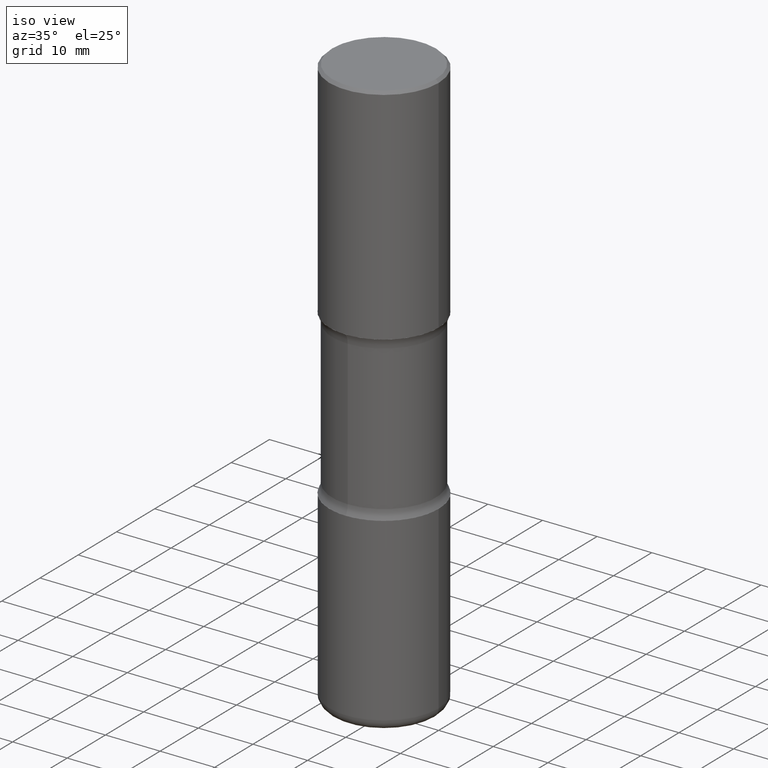
[diagram: clean part render]
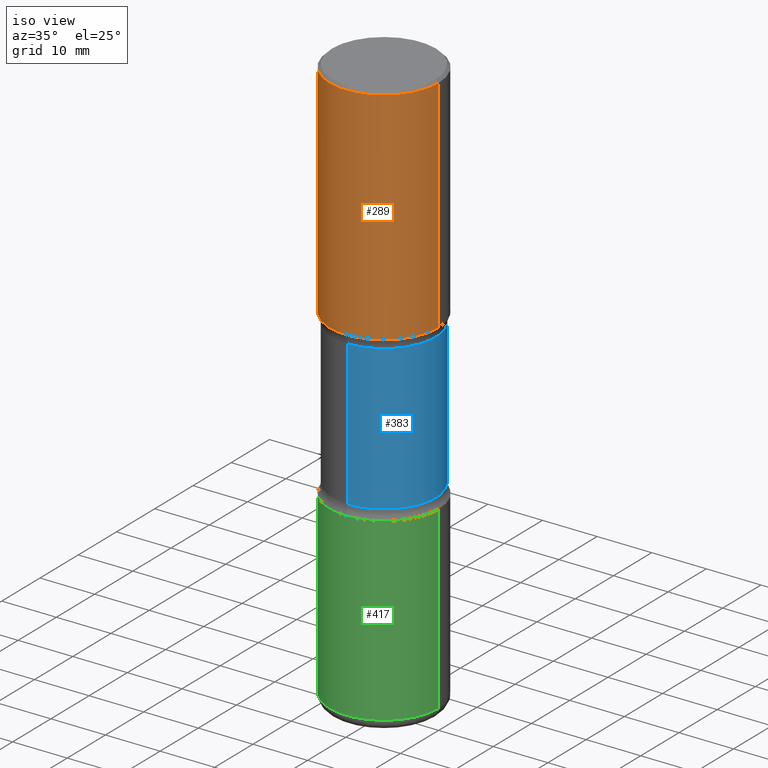
[diagram: same view with three faces highlighted in distinct colors, each labeled with its STEP entity id]
A machine part, iso view with three faces highlighted in distinct colors.
Their STEP definitions:

[orange] entity #289 — the highlighted cylindrical surface (partial cylindrical patch) has radius 10 mm, axis along (-0, 0, 1).
#8 = FACE_OUTER_BOUND ( 'NONE', #123, .T. ) ;
#12 = EDGE_CURVE ( 'NONE', #316, #271, #16, .T. ) ;
#16 = LINE ( 'NONE', #308, #420 ) ;
#28 = CARTESIAN_POINT ( 'NONE',  ( 0.3937000000000006605, -8.384792435231810596E-15, -1.614100000000000090 ) ) ;
#34 = ORIENTED_EDGE ( 'NONE', *, *, #173, .T. ) ;
#39 = EDGE_CURVE ( 'NONE', #413, #391, #477, .T. ) ;
#66 = DIRECTION ( 'NONE',  ( -2.445468806185136597E-29, 3.491481338843145583E-15, 1.000000000000000000 ) ) ;
#80 = CIRCLE ( 'NONE', #384, 0.3937000000000006605 ) ;
#88 = DIRECTION ( 'NONE',  ( 1.000000000000000000, -6.982962677686266711E-15, 0.000000000000000000 ) ) ;
#99 = DIRECTION ( 'NONE',  ( -2.445468806185136877E-29, 3.491481338843145188E-15, 1.000000000000000000 ) ) ;
#105 = CARTESIAN_POINT ( 'NONE',  ( -0.3937000000000007160, -5.530807721427186863E-17, -1.614100000000000090 ) ) ;
#106 = DIRECTION ( 'NONE',  ( -2.445468806185136877E-29, 3.491481338843145188E-15, 1.000000000000000000 ) ) ;
#123 = EDGE_LOOP ( 'NONE', ( #162, #34, #408, #243 ) ) ;
#139 = CARTESIAN_POINT ( 'NONE',  ( 0.3937000000000003830, -2.770807688499518100E-15, -0.02000000000000013572 ) ) ;
#162 = ORIENTED_EDGE ( 'NONE', *, *, #39, .F. ) ;
#170 = AXIS2_PLACEMENT_3D ( 'NONE', #313, #253, #88 ) ;
#173 = EDGE_CURVE ( 'NONE', #413, #316, #80, .T. ) ;
#192 = DIRECTION ( 'NONE',  ( 1.000000000000000000, -6.982962677686266711E-15, 0.000000000000000000 ) ) ;
#243 = ORIENTED_EDGE ( 'NONE', *, *, #247, .F. ) ;
#247 = EDGE_CURVE ( 'NONE', #391, #271, #328, .T. ) ;
#253 = DIRECTION ( 'NONE',  ( -2.445468806185136597E-29, 3.491481338843145583E-15, 1.000000000000000000 ) ) ;
#258 = AXIS2_PLACEMENT_3D ( 'NONE', #264, #433, #533 ) ;
#264 = CARTESIAN_POINT ( 'NONE',  ( 0.000000000000000000, 0.000000000000000000, 0.000000000000000000 ) ) ;
#269 = CARTESIAN_POINT ( 'NONE',  ( -0.3937000000000003830, 2.679362779428222679E-15, -0.02000000000000013572 ) ) ;
#271 = VERTEX_POINT ( 'NONE', #139 ) ;
#285 = CARTESIAN_POINT ( 'NONE',  ( 3.947231200063429727E-29, -5.635600029026721857E-15, -1.614100000000000090 ) ) ;
#289 = ADVANCED_FACE ( 'NONE', ( #8 ), #389, .T. ) ;
#308 = CARTESIAN_POINT ( 'NONE',  ( 0.3937000000000004940, -2.749192406205086766E-15, 1.919750796630862414E-29 ) ) ;
#313 = CARTESIAN_POINT ( 'NONE',  ( 4.890937612370306439E-31, -6.982962677686338448E-17, -0.02000000000000013572 ) ) ;
#316 = VERTEX_POINT ( 'NONE', #28 ) ;
#328 = CIRCLE ( 'NONE', #170, 0.3937000000000003830 ) ;
#384 = AXIS2_PLACEMENT_3D ( 'NONE', #285, #66, #192 ) ;
#389 = CYLINDRICAL_SURFACE ( 'NONE', #258, 0.3937000000000004940 ) ;
#391 = VERTEX_POINT ( 'NONE', #269 ) ;
#408 = ORIENTED_EDGE ( 'NONE', *, *, #12, .T. ) ;
#413 = VERTEX_POINT ( 'NONE', #105 ) ;
#420 = VECTOR ( 'NONE', #99, 39.37007874015748143 ) ;
#430 = CARTESIAN_POINT ( 'NONE',  ( -0.3937000000000004940, 2.797406750687517942E-15, -1.936584745033358697E-29 ) ) ;
#433 = DIRECTION ( 'NONE',  ( -2.445468806185136597E-29, 3.491481338843145583E-15, 1.000000000000000000 ) ) ;
#477 = LINE ( 'NONE', #430, #502 ) ;
#502 = VECTOR ( 'NONE', #106, 39.37007874015748143 ) ;
#533 = DIRECTION ( 'NONE',  ( 1.000000000000000000, -6.982962677686266711E-15, 4.876176775795935793E-29 ) ) ;

[blue] entity #383 — the highlighted cylindrical surface (partial cylindrical patch) has radius 9.4869 mm, axis along (0, -0, -1).
#7 = AXIS2_PLACEMENT_3D ( 'NONE', #191, #404, #545 ) ;
#20 = CARTESIAN_POINT ( 'NONE',  ( 2.608136560115886865E-15, 0.3734999999999905618, -2.727068069159902741 ) ) ;
#22 = EDGE_CURVE ( 'NONE', #78, #330, #179, .T. ) ;
#33 = DIRECTION ( 'NONE',  ( 2.497382066111305685E-29, -3.417138595909611452E-15, -1.000000000000000000 ) ) ;
#40 = ORIENTED_EDGE ( 'NONE', *, *, #488, .T. ) ;
#47 = AXIS2_PLACEMENT_3D ( 'NONE', #49, #33, #196 ) ;
#49 = CARTESIAN_POINT ( 'NONE',  ( 4.056067910974230799E-29, -5.956222493193065901E-15, -1.682231930840099476 ) ) ;
#64 = VERTEX_POINT ( 'NONE', #393 ) ;
#78 = VERTEX_POINT ( 'NONE', #20 ) ;
#82 = EDGE_CURVE ( 'NONE', #222, #64, #326, .T. ) ;
#96 = DIRECTION ( 'NONE',  ( 2.497382066111305685E-29, -3.417138595909611452E-15, -1.000000000000000000 ) ) ;
#97 = VECTOR ( 'NONE', #424, 39.37007874015748143 ) ;
#163 = LINE ( 'NONE', #339, #97 ) ;
#165 = AXIS2_PLACEMENT_3D ( 'NONE', #172, #96, #345 ) ;
#172 = CARTESIAN_POINT ( 'NONE',  ( 6.665422944839096374E-29, -9.526572387846816848E-15, -2.727068069159901409 ) ) ;
#179 = CIRCLE ( 'NONE', #165, 0.3735000000000000542 ) ;
#181 = VECTOR ( 'NONE', #334, 39.37007874015748143 ) ;
#191 = CARTESIAN_POINT ( 'NONE',  ( 1.027696689415007474E-28, -1.446820562349780459E-14, -4.173200000000000465 ) ) ;
#196 = DIRECTION ( 'NONE',  ( 6.982962677686265922E-15, 1.000000000000000000, -3.657092360996333689E-15 ) ) ;
#198 = CARTESIAN_POINT ( 'NONE',  ( -2.631687031945092870E-15, -0.3735000000000095466, -2.727068069159900521 ) ) ;
#222 = VERTEX_POINT ( 'NONE', #390 ) ;
#279 = CYLINDRICAL_SURFACE ( 'NONE', #7, 0.3735000000000001097 ) ;
#296 = CARTESIAN_POINT ( 'NONE',  ( 2.608136560115923941E-15, 0.3734999999999856213, -4.173200000000001353 ) ) ;
#326 = CIRCLE ( 'NONE', #47, 0.3735000000000002762 ) ;
#330 = VERTEX_POINT ( 'NONE', #198 ) ;
#334 = DIRECTION ( 'NONE',  ( 2.497382066111305685E-29, -3.417138595909611452E-15, -1.000000000000000000 ) ) ;
#339 = CARTESIAN_POINT ( 'NONE',  ( -2.562396002167564465E-15, -0.3735000000000145981, -4.173199999999998688 ) ) ;
#345 = DIRECTION ( 'NONE',  ( 6.982962677686265922E-15, 1.000000000000000000, -2.925673888797068529E-15 ) ) ;
#348 = ORIENTED_EDGE ( 'NONE', *, *, #506, .F. ) ;
#365 = ORIENTED_EDGE ( 'NONE', *, *, #82, .T. ) ;
#381 = LINE ( 'NONE', #296, #181 ) ;
#383 = ADVANCED_FACE ( 'NONE', ( #452 ), #279, .T. ) ;
#390 = CARTESIAN_POINT ( 'NONE',  ( 2.608136560115862805E-15, 0.3734999999999943365, -1.682231930840100809 ) ) ;
#393 = CARTESIAN_POINT ( 'NONE',  ( -2.631687031945122847E-15, -0.3735000000000062159, -1.682231930840098144 ) ) ;
#404 = DIRECTION ( 'NONE',  ( 2.497382066111305685E-29, -3.417138595909611452E-15, -1.000000000000000000 ) ) ;
#424 = DIRECTION ( 'NONE',  ( 2.497382066111305685E-29, -3.417138595909611452E-15, -1.000000000000000000 ) ) ;
#452 = FACE_OUTER_BOUND ( 'NONE', #544, .T. ) ;
#488 = EDGE_CURVE ( 'NONE', #64, #330, #163, .T. ) ;
#506 = EDGE_CURVE ( 'NONE', #222, #78, #381, .T. ) ;
#534 = ORIENTED_EDGE ( 'NONE', *, *, #22, .F. ) ;
#544 = EDGE_LOOP ( 'NONE', ( #365, #40, #534, #348 ) ) ;
#545 = DIRECTION ( 'NONE',  ( 6.982962677686265922E-15, 1.000000000000000000, -2.925673888797068135E-15 ) ) ;

[green] entity #417 — the highlighted cylindrical surface (partial cylindrical patch) has radius 10 mm, axis along (-0, 0, 1).
#21 = LINE ( 'NONE', #273, #244 ) ;
#35 = DIRECTION ( 'NONE',  ( 1.000000000000000000, -6.982962677686266711E-15, 4.876176775795935793E-29 ) ) ;
#53 = EDGE_LOOP ( 'NONE', ( #282, #312, #215, #288 ) ) ;
#63 = CARTESIAN_POINT ( 'NONE',  ( 0.3937000000000002164, -2.749192406205084794E-15, 1.919750796630861012E-29 ) ) ;
#84 = EDGE_CURVE ( 'NONE', #547, #556, #496, .T. ) ;
#113 = DIRECTION ( 'NONE',  ( 1.000000000000000000, -6.982962677686269866E-15, 0.000000000000000000 ) ) ;
#116 = CARTESIAN_POINT ( 'NONE',  ( 6.835574407048695164E-29, -9.759388638334361670E-15, -2.795200000000000351 ) ) ;
#122 = CARTESIAN_POINT ( 'NONE',  ( 0.3937000000000001054, -1.704506274809834471E-14, -4.094500000000000028 ) ) ;
#125 = CARTESIAN_POINT ( 'NONE',  ( 0.3937000000000002164, -1.250858104453944804E-14, -2.795200000000000351 ) ) ;
#128 = EDGE_CURVE ( 'NONE', #406, #556, #298, .T. ) ;
#132 = VECTOR ( 'NONE', #287, 39.37007874015748143 ) ;
#152 = CARTESIAN_POINT ( 'NONE',  ( -0.3937000000000002164, -9.230222739426296007E-15, -2.795200000000000351 ) ) ;
#155 = FACE_OUTER_BOUND ( 'NONE', #53, .T. ) ;
#167 = AXIS2_PLACEMENT_3D ( 'NONE', #471, #524, #255 ) ;
#206 = CARTESIAN_POINT ( 'NONE',  ( -0.3937000000000001054, -1.149846359120574434E-14, -4.094500000000000028 ) ) ;
#214 = CIRCLE ( 'NONE', #167, 0.3937000000000002164 ) ;
#215 = ORIENTED_EDGE ( 'NONE', *, *, #84, .T. ) ;
#244 = VECTOR ( 'NONE', #495, 39.37007874015748143 ) ;
#255 = DIRECTION ( 'NONE',  ( 1.000000000000000000, -6.982962677686265133E-15, 0.000000000000000000 ) ) ;
#273 = CARTESIAN_POINT ( 'NONE',  ( -0.3937000000000002164, 2.797406750687515970E-15, -1.936584745033357576E-29 ) ) ;
#276 = DIRECTION ( 'NONE',  ( -2.445468806185136597E-29, 3.491481338843145583E-15, 1.000000000000000000 ) ) ;
#282 = ORIENTED_EDGE ( 'NONE', *, *, #380, .F. ) ;
#287 = DIRECTION ( 'NONE',  ( -2.445468806185136877E-29, 3.491481338843145188E-15, 1.000000000000000000 ) ) ;
#288 = ORIENTED_EDGE ( 'NONE', *, *, #128, .F. ) ;
#298 = CIRCLE ( 'NONE', #552, 0.3937000000000002164 ) ;
#312 = ORIENTED_EDGE ( 'NONE', *, *, #522, .T. ) ;
#318 = DIRECTION ( 'NONE',  ( -2.445468806185136597E-29, 3.491481338843145583E-15, 1.000000000000000000 ) ) ;
#320 = CARTESIAN_POINT ( 'NONE',  ( 0.000000000000000000, 0.000000000000000000, 0.000000000000000000 ) ) ;
#380 = EDGE_CURVE ( 'NONE', #559, #406, #21, .T. ) ;
#406 = VERTEX_POINT ( 'NONE', #152 ) ;
#417 = ADVANCED_FACE ( 'NONE', ( #155 ), #439, .T. ) ;
#423 = AXIS2_PLACEMENT_3D ( 'NONE', #320, #276, #35 ) ;
#439 = CYLINDRICAL_SURFACE ( 'NONE', #423, 0.3937000000000002164 ) ;
#471 = CARTESIAN_POINT ( 'NONE',  ( 1.001297202692504215E-28, -1.429587034189326149E-14, -4.094500000000000028 ) ) ;
#495 = DIRECTION ( 'NONE',  ( -2.445468806185136877E-29, 3.491481338843145188E-15, 1.000000000000000000 ) ) ;
#496 = LINE ( 'NONE', #63, #132 ) ;
#522 = EDGE_CURVE ( 'NONE', #559, #547, #214, .T. ) ;
#524 = DIRECTION ( 'NONE',  ( -2.445468806185136597E-29, 3.491481338843145583E-15, 1.000000000000000000 ) ) ;
#547 = VERTEX_POINT ( 'NONE', #122 ) ;
#552 = AXIS2_PLACEMENT_3D ( 'NONE', #116, #318, #113 ) ;
#556 = VERTEX_POINT ( 'NONE', #125 ) ;
#559 = VERTEX_POINT ( 'NONE', #206 ) ;